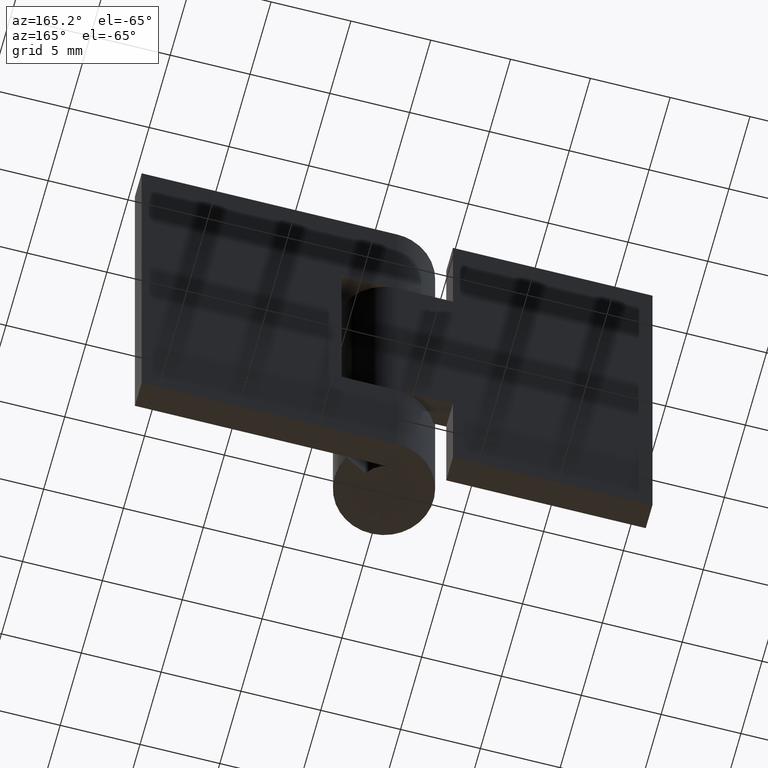
[diagram: clean part render]
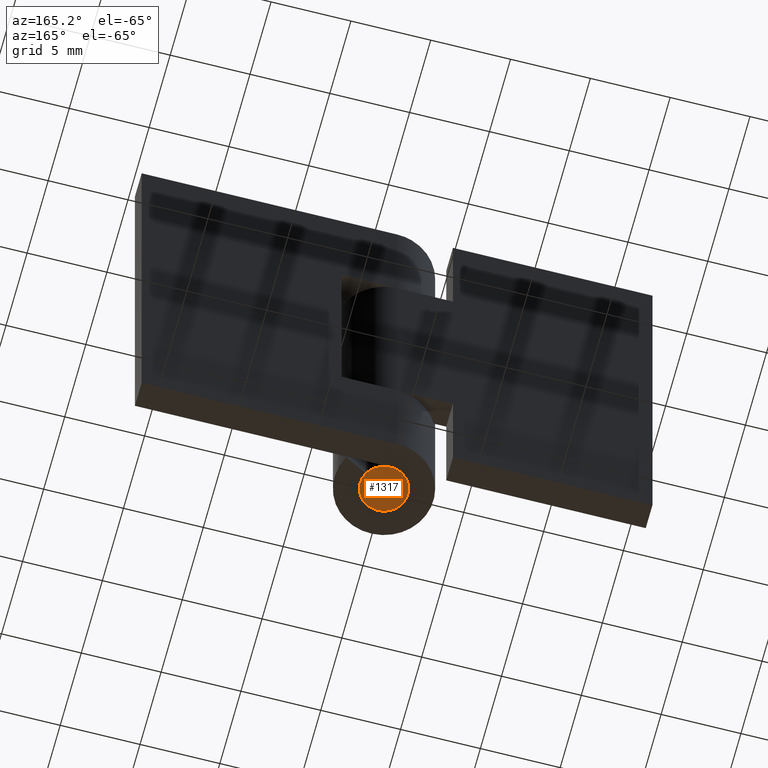
[diagram: same view with one face highlighted and labeled with its STEP entity id]
A machine part, auxiliary view. The second image highlights one B-rep face of the part: STEP entity #1317.
In plain terms, the highlighted face is a freeform B-spline surface patch.
Its self-contained STEP definition (entity closure, byte-faithful):
#1142=CARTESIAN_POINT('',(0.177051351996901,-1.489514289544101,-1.703657E-015));
#1143=VERTEX_POINT('',#1142);
#1144=CARTESIAN_POINT('',(-1.500000000000000,0.0,0.0));
#1145=VERTEX_POINT('',#1144);
#1146=CARTESIAN_POINT('',(0.177051351996901,-1.489514289544102,-1.703657E-015));
#1147=CARTESIAN_POINT('',(0.088836179489753,-1.500000000000000,0.0));
#1148=CARTESIAN_POINT('',(0.0,-1.500000000000000,0.0));
#1149=CARTESIAN_POINT('',(-1.500000000000000,-1.500000000000000,0.0));
#1150=CARTESIAN_POINT('',(-1.500000000000000,0.0,0.0));
#1158=(BOUNDED_CURVE()B_SPLINE_CURVE(2,(#1146,#1147,#1148,#1149,#1150),.UNSPECIFIED.,.F.,.U.)B_SPLINE_CURVE_WITH_KNOTS((3,2,3),(0.229562473512975,0.250000000000000,0.500000000000000),.UNSPECIFIED.)CURVE()GEOMETRIC_REPRESENTATION_ITEM()RATIONAL_B_SPLINE_CURVE((0.956026754182654,0.976055948330520,1.0,0.707106781186548,1.0))REPRESENTATION_ITEM(''));
#1159=EDGE_CURVE('',#1143,#1145,#1158,.T.);
#1200=CARTESIAN_POINT('',(-0.091572809380306,1.497202197628028,1.831868E-015));
#1201=VERTEX_POINT('',#1200);
#1207=CARTESIAN_POINT('',(-1.500000000000000,0.0,0.0));
#1208=CARTESIAN_POINT('',(-1.500000000000000,1.411059100211211,0.0));
#1209=CARTESIAN_POINT('',(-0.091572809380306,1.497202197628028,1.831868E-015));
#1217=(BOUNDED_CURVE()B_SPLINE_CURVE(2,(#1207,#1208,#1209),.UNSPECIFIED.,.F.,.U.)B_SPLINE_CURVE_WITH_KNOTS((3,3),(0.500000000000000,0.739332962223986),.UNSPECIFIED.)CURVE()GEOMETRIC_REPRESENTATION_ITEM()RATIONAL_B_SPLINE_CURVE((1.0,0.719603993304233,0.976072041634662))REPRESENTATION_ITEM(''));
#1218=EDGE_CURVE('',#1145,#1201,#1217,.T.);
#1241=CARTESIAN_POINT('',(1.500000000000000,0.0,0.0));
#1242=VERTEX_POINT('',#1241);
#1243=CARTESIAN_POINT('',(1.500000000000000,0.0,0.0));
#1244=CARTESIAN_POINT('',(1.500000000000000,-1.332261788905860,0.0));
#1245=CARTESIAN_POINT('',(0.177051351996901,-1.489514289544102,-1.703657E-015));
#1253=(BOUNDED_CURVE()B_SPLINE_CURVE(2,(#1243,#1244,#1245),.UNSPECIFIED.,.F.,.U.)B_SPLINE_CURVE_WITH_KNOTS((3,3),(0.0,0.229562473512975),.UNSPECIFIED.)CURVE()GEOMETRIC_REPRESENTATION_ITEM()RATIONAL_B_SPLINE_CURVE((1.0,0.731050832856028,0.956026754182654))REPRESENTATION_ITEM(''));
#1254=EDGE_CURVE('',#1242,#1143,#1253,.T.);
#1256=CARTESIAN_POINT('',(-0.091572809380306,1.497202197628028,1.831868E-015));
#1257=CARTESIAN_POINT('',(-0.045829145026122,1.500000000000000,0.0));
#1258=CARTESIAN_POINT('',(0.0,1.500000000000000,0.0));
#1259=CARTESIAN_POINT('',(1.500000000000000,1.500000000000000,0.0));
#1260=CARTESIAN_POINT('',(1.500000000000000,0.0,0.0));
#1268=(BOUNDED_CURVE()B_SPLINE_CURVE(2,(#1256,#1257,#1258,#1259,#1260),.UNSPECIFIED.,.F.,.U.)B_SPLINE_CURVE_WITH_KNOTS((3,2,3),(0.739332962223985,0.750000000000000,1.0),.UNSPECIFIED.)CURVE()GEOMETRIC_REPRESENTATION_ITEM()RATIONAL_B_SPLINE_CURVE((0.976072041634661,0.987502787882313,1.0,0.707106781186548,1.0))REPRESENTATION_ITEM(''));
#1269=EDGE_CURVE('',#1201,#1242,#1268,.T.);
#1306=CARTESIAN_POINT('',(-1.649849994185418,-1.649822796803178,0.0));
#1307=CARTESIAN_POINT('',(1.649850074651688,-1.649822796803178,0.0));
#1308=CARTESIAN_POINT('',(-1.649849994185418,1.649813489537896,0.0));
#1309=CARTESIAN_POINT('',(1.649850074651688,1.649813489537896,0.0));
#1310=B_SPLINE_SURFACE_WITH_KNOTS('',1,1,((#1306,#1308),(#1307,#1309)),.UNSPECIFIED.,.F.,.F.,.U.,(2,2),(2,2),(0.0,3.299700068837106),(0.0,3.299636286341074),.UNSPECIFIED.);
#1311=ORIENTED_EDGE('',*,*,#1254,.T.);
#1312=ORIENTED_EDGE('',*,*,#1159,.T.);
#1313=ORIENTED_EDGE('',*,*,#1218,.T.);
#1314=ORIENTED_EDGE('',*,*,#1269,.T.);
#1315=EDGE_LOOP('',(#1311,#1312,#1313,#1314));
#1316=FACE_OUTER_BOUND('',#1315,.T.);
#1317=ADVANCED_FACE('',(#1316),#1310,.F.);